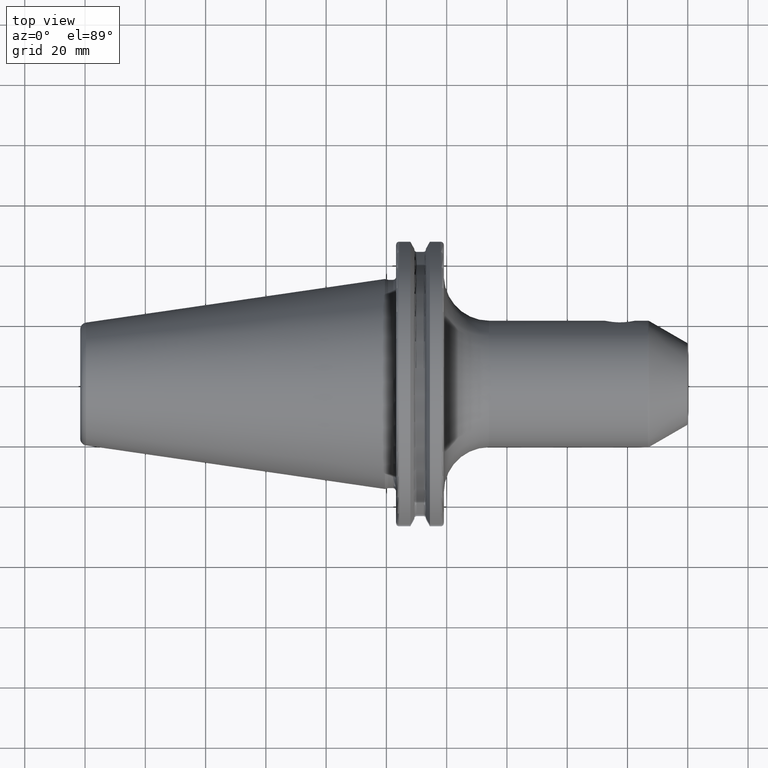
[diagram: clean part render]
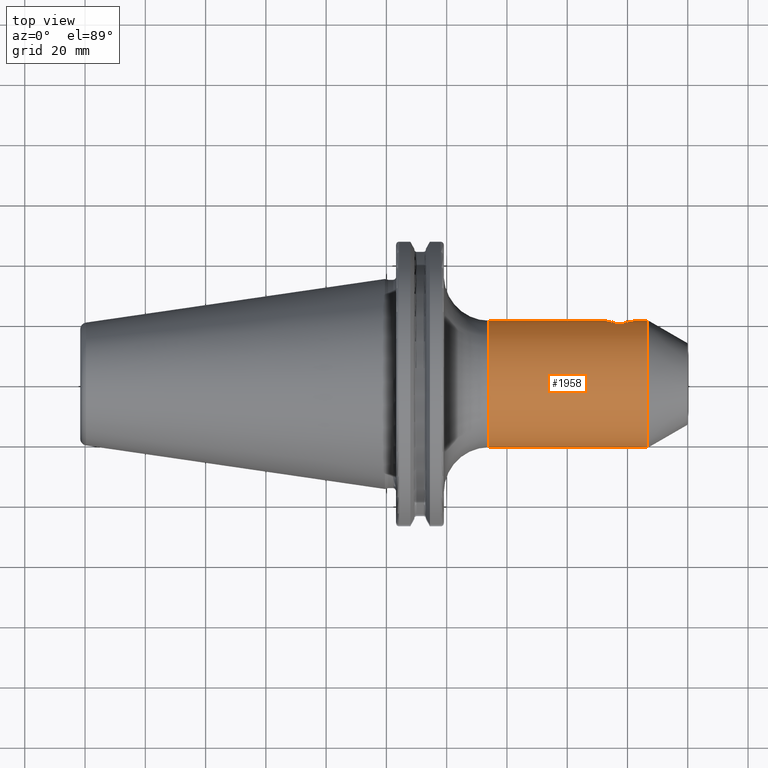
[diagram: same view with one face highlighted and labeled with its STEP entity id]
A machine part, top view. The second image highlights one B-rep face of the part: STEP entity #1958.
In plain terms, the highlighted cylindrical surface (partial cylindrical patch) has radius 21 mm, axis along (1, 0, 0).
Its self-contained STEP definition (entity closure, byte-faithful):
#200=CARTESIAN_POINT('',(8.26E1,2.1E1,0.E0));
#201=CARTESIAN_POINT('',(8.26E1,2.1E1,2.754150771903E-1));
#202=CARTESIAN_POINT('',(8.255612027801E1,2.098927785188E1,8.196229199677E-1));
#203=CARTESIAN_POINT('',(8.235722516234E1,2.094185722900E1,1.627347816878E0));
#204=CARTESIAN_POINT('',(8.203118864992E1,2.086805360298E1,2.387959712220E0));
#205=CARTESIAN_POINT('',(8.159439459823E1,2.077686272933E1,3.076687614843E0));
#206=CARTESIAN_POINT('',(8.105368036986E1,2.067621561792E1,3.688670001304E0));
#207=CARTESIAN_POINT('',(8.041097132271E1,2.057443993914E1,4.215579804027E0));
#208=CARTESIAN_POINT('',(7.967865335330E1,2.048279028549E1,4.636845401257E0));
#209=CARTESIAN_POINT('',(7.888014923346E1,2.041221339703E1,4.935610466006E0));
#210=CARTESIAN_POINT('',(7.799233954143E1,2.037036486062E1,5.103891940506E0));
#211=CARTESIAN_POINT('',(7.706803526773E1,2.036896272513E1,5.109418364728E0));
#212=CARTESIAN_POINT('',(7.617626521825E1,2.040839471184E1,4.951224208887E0));
#213=CARTESIAN_POINT('',(7.537038721711E1,2.047751743200E1,4.659915918244E0));
#214=CARTESIAN_POINT('',(7.462790061088E1,2.056885407087E1,4.242670087756E0));
#215=CARTESIAN_POINT('',(7.397455105593E1,2.067128674471E1,3.716233982196E0));
#216=CARTESIAN_POINT('',(7.342444048394E1,2.077309091970E1,3.102311984487E0));
#217=CARTESIAN_POINT('',(7.297930555071E1,2.086573487388E1,2.408711355933E0));
#218=CARTESIAN_POINT('',(7.264734640861E1,2.094077905704E1,1.642215677942E0));
#219=CARTESIAN_POINT('',(7.244473450922E1,2.098906756397E1,8.274506658315E-1));
#220=CARTESIAN_POINT('',(7.24E1,2.1E1,2.781112722299E-1));
#221=CARTESIAN_POINT('',(7.24E1,2.1E1,0.E0));
#223=CARTESIAN_POINT('',(8.673205080757E1,0.E0,0.E0));
#224=DIRECTION('',(-1.E0,0.E0,0.E0));
#225=DIRECTION('',(0.E0,-1.E0,0.E0));
#226=AXIS2_PLACEMENT_3D('',#223,#224,#225);
#228=CARTESIAN_POINT('',(3.405E1,0.E0,0.E0));
#229=DIRECTION('',(1.E0,0.E0,0.E0));
#230=DIRECTION('',(0.E0,1.E0,0.E0));
#231=AXIS2_PLACEMENT_3D('',#228,#229,#230);
#389=DIRECTION('',(-9.999999998716E-1,-4.690693725927E-10,1.602675216119E-5));
#390=VECTOR('',#389,3.835000000493E1);
#391=CARTESIAN_POINT('',(7.24E1,2.1E1,0.E0));
#392=LINE('',#391,#390);
#398=DIRECTION('',(-1.E0,0.E0,-2.130706600182E-13));
#399=VECTOR('',#398,5.268205080757E1);
#400=CARTESIAN_POINT('',(8.673205080757E1,-2.1E1,1.587263608650E-12));
#401=LINE('',#400,#399);
#407=DIRECTION('',(-1.E0,0.E0,3.846026095967E-13));
#408=VECTOR('',#407,4.132050807569E0);
#409=CARTESIAN_POINT('',(8.673205080757E1,2.1E1,-1.587908174991E-12));
#410=LINE('',#409,#408);
#1637=CARTESIAN_POINT('',(8.26E1,2.1E1,0.E0));
#1639=VERTEX_POINT('',#1637);
#1641=CARTESIAN_POINT('',(7.24E1,2.1E1,0.E0));
#1643=VERTEX_POINT('',#1641);
#1650=CARTESIAN_POINT('',(3.405E1,-2.1E1,0.E0));
#1651=CARTESIAN_POINT('',(3.405E1,2.1E1,0.E0));
#1652=VERTEX_POINT('',#1650);
#1653=VERTEX_POINT('',#1651);
#1656=CARTESIAN_POINT('',(8.673205080757E1,2.1E1,0.E0));
#1657=CARTESIAN_POINT('',(8.673205080757E1,-2.1E1,0.E0));
#1658=VERTEX_POINT('',#1656);
#1659=VERTEX_POINT('',#1657);
#1940=CARTESIAN_POINT('',(1.50025E1,0.E0,0.E0));
#1941=DIRECTION('',(1.E0,0.E0,0.E0));
#1942=DIRECTION('',(0.E0,-1.E0,0.E0));
#1943=AXIS2_PLACEMENT_3D('',#1940,#1941,#1942);
#1944=CYLINDRICAL_SURFACE('',#1943,2.1E1);
#1946=ORIENTED_EDGE('',*,*,#1945,.F.);
#1948=ORIENTED_EDGE('',*,*,#1947,.F.);
#1950=ORIENTED_EDGE('',*,*,#1949,.F.);
#1952=ORIENTED_EDGE('',*,*,#1951,.T.);
#1953=ORIENTED_EDGE('',*,*,#1934,.F.);
#1955=ORIENTED_EDGE('',*,*,#1954,.F.);
#1956=EDGE_LOOP('',(#1946,#1948,#1950,#1952,#1953,#1955));
#1957=FACE_OUTER_BOUND('',#1956,.F.);
#1958=ADVANCED_FACE('',(#1957),#1944,.T.);
#222=B_SPLINE_CURVE_WITH_KNOTS('',3,(#200,#201,#202,#203,#204,#205,#206,#207,
#208,#209,#210,#211,#212,#213,#214,#215,#216,#217,#218,#219,#220,#221),
.UNSPECIFIED.,.F.,.F.,(4,1,1,1,1,1,1,1,1,1,1,1,1,1,1,1,1,1,1,4),(0.E0,
5.263157894737E-2,1.052631578947E-1,1.578947368421E-1,2.105263157895E-1,
2.631578947368E-1,3.157894736842E-1,3.684210526316E-1,4.210526315789E-1,
4.736842105263E-1,5.263157894737E-1,5.789473684211E-1,6.315789473684E-1,
6.842105263158E-1,7.368421052632E-1,7.894736842105E-1,8.421052631579E-1,
8.947368421053E-1,9.473684210526E-1,1.E0),.UNSPECIFIED.);
#227=CIRCLE('',#226,2.1E1);
#232=CIRCLE('',#231,2.1E1);
#1934=EDGE_CURVE('',#1653,#1652,#232,.T.);
#1945=EDGE_CURVE('',#1639,#1643,#222,.T.);
#1947=EDGE_CURVE('',#1658,#1639,#410,.T.);
#1949=EDGE_CURVE('',#1659,#1658,#227,.T.);
#1951=EDGE_CURVE('',#1659,#1652,#401,.T.);
#1954=EDGE_CURVE('',#1643,#1653,#392,.T.);